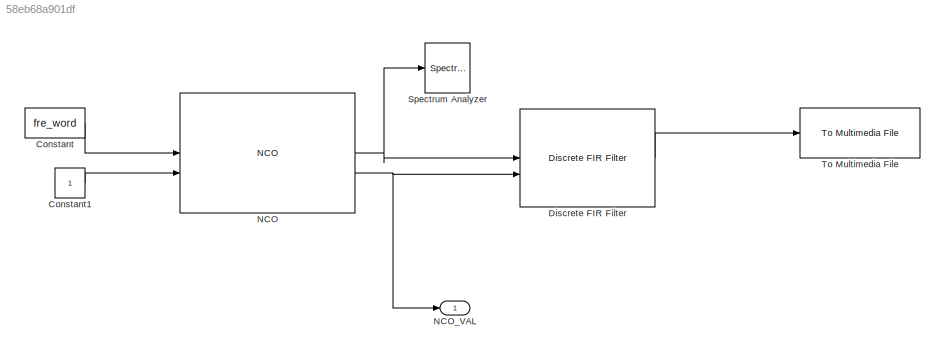
MODEL slx_58eb68a901df
KIND model
CONFIG AbsTol = auto
CONFIG EnableMultiTasking = off
CONFIG FixedStep = auto
CONFIG MaxStep = auto
CONFIG MinStep = auto
CONFIG RelTol = 1e-3
CONFIG SampleTimeConstraint = Unconstrained
CONFIG SolverName = FixedStepDiscrete
CONFIG StartTime = 0.0
CONFIG StopTime = 5
BLOCK [Constant] Constant
  SampleTime = 1/CLK
  Value = fre_word
BLOCK [Constant] Constant1
  OutDataTypeStr = boolean
  SampleTime = 1/CLK
BLOCK [Reference] Discrete FIR Filter  REF=dsphdlfiltering2/Discrete FIR Filter
  SourceBlock = dsphdlfiltering2/Discrete FIR Filter
  SourceType = Discrete FIR Filter
BLOCK [Reference] NCO  REF=dsphdlsigops2/NCO
  SourceBlock = dsphdlsigops2/NCO
  SourceType = NCO
BLOCK [Outport] NCO_VAL
  VectorParamsAs1DForOutWhenUnconnected = off
BLOCK [SpectrumAnalyzer] Spectrum Analyzer
  GraphicalSettings = {"GraphicalSettings":{"Style":{"BackgroundColor":[0.12941176470588237,0.12941176470588237,0.12941176470588237],"AxesColor":[0.07058823529411765,0.07058823529411765,0.07058823529411765],"LabelsColor":[0.8509803921568627,0.8509803921568627,0.8509803921568627],"PreserveColors":false,"Visible":[true],"LineStyle":["-"],"LineColor":[[1,1,0.06666666666666667]],"LineWidth":[1.5],"Marker":["none"],"FontSiz...<+927ch>
  ScopeFrameLocation = window
  SelectedToolstripTab = spectrumAnalyzerToolstrip.measurementsTab
  Visible = on
  WasSavedAsWebScope = on
  WindowPosition = [368.000000,182.000000,800.000000,500.000000,]
  YLimits = [-134.23884353,-16.85151621]
BLOCK [Reference] To Multimedia File  REF=dspvision/To Multimedia File
  LibrarySourceBlock = dspsnks4/To Multimedia File
  SourceBlock = dspvision/To Multimedia File
  SourceType = To Multimedia File
LINE Constant1:1 -> NCO:2
LINE Constant:1 -> NCO:1
LINE Discrete FIR Filter:1 -> To Multimedia File:1
NET NCO:1 -> Discrete FIR Filter:1, Spectrum Analyzer:1
NET NCO:2 -> Discrete FIR Filter:2, NCO_VAL:1
note: NET lines group one-source signal fan-out (src -> all destinations, sorted); 1:1 wires keep LINE
